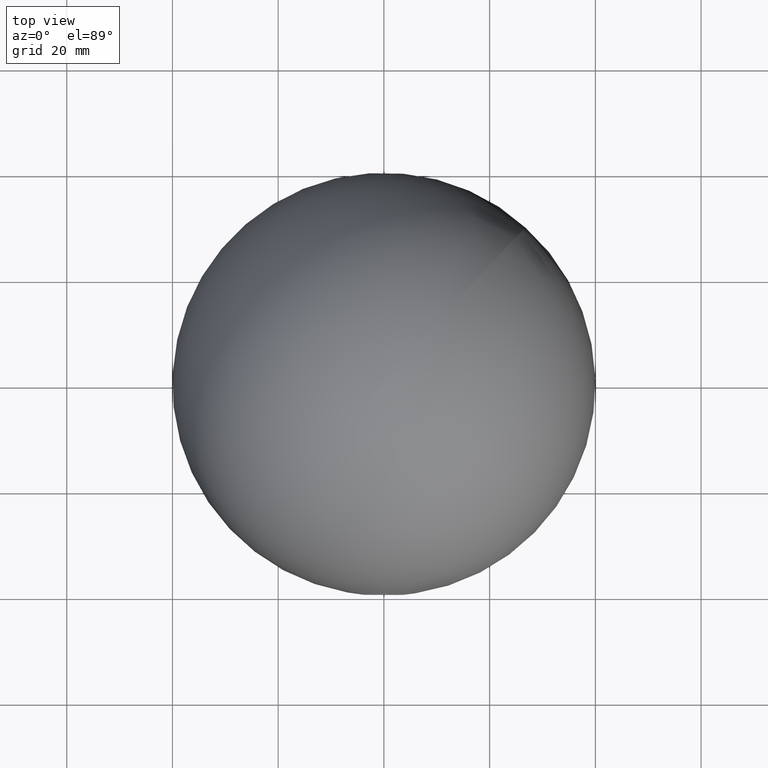
[diagram: clean part render]
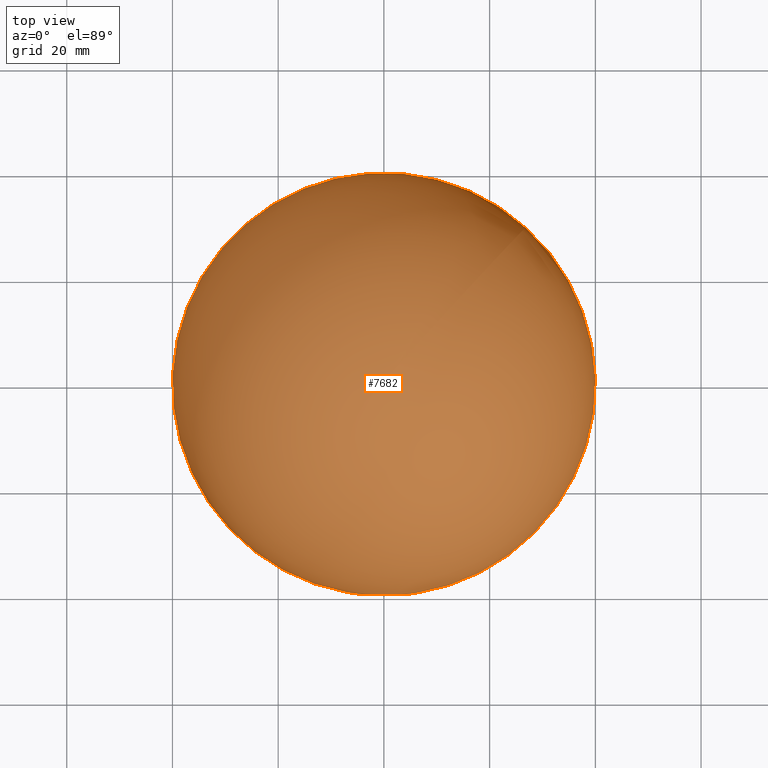
[diagram: same view with one face highlighted and labeled with its STEP entity id]
A machine part, top view. The second image highlights one B-rep face of the part: STEP entity #7682.
In plain terms, the highlighted spherical surface has radius 40 mm.
Its self-contained STEP definition (entity closure, byte-faithful):
#700 = DIRECTION ( 'NONE',  ( 0.0000000000000000000, 0.0000000000000000000, 1.000000000000000000 ) ) ;
#781 = DIRECTION ( 'NONE',  ( -1.000000000000000000, -1.734723475976807100E-016, 0.0000000000000000000 ) ) ;
#841 = CIRCLE ( 'NONE', #12665, 3.894852625703053100 ) ;
#1987 = CARTESIAN_POINT ( 'NONE',  ( -1.394373279736362900E-031, 0.1900750688467803300, 0.0000000000000000000 ) ) ;
#5870 = CARTESIAN_POINT ( 'NONE',  ( -1.394373279736362900E-031, 0.1900750688467803300, 3.894852625703053100 ) ) ;
#7192 = EDGE_LOOP ( 'NONE', ( #10210 ) ) ;
#7682 = ADVANCED_FACE ( 'NONE', ( #10019 ), #14462, .T. ) ;
#10019 = FACE_OUTER_BOUND ( 'NONE', #7192, .T. ) ;
#10210 = ORIENTED_EDGE ( 'NONE', *, *, #11636, .T. ) ;
#11636 = EDGE_CURVE ( 'NONE', #14324, #14324, #841, .T. ) ;
#12077 = DIRECTION ( 'NONE',  ( -0.0000000000000000000, 0.0000000000000000000, -1.000000000000000000 ) ) ;
#12096 = AXIS2_PLACEMENT_3D ( 'NONE', #14305, #12077, #781 ) ;
#12665 = AXIS2_PLACEMENT_3D ( 'NONE', #1987, #13227, #700 ) ;
#13227 = DIRECTION ( 'NONE',  ( -0.0000000000000000000, 1.000000000000000000, -0.0000000000000000000 ) ) ;
#14305 = CARTESIAN_POINT ( 'NONE',  ( -1.394373279736362900E-031, 40.00000000000000000, 0.0000000000000000000 ) ) ;
#14324 = VERTEX_POINT ( 'NONE', #5870 ) ;
#14462 = SPHERICAL_SURFACE ( 'NONE', #12096, 40.00000000000000000 ) ;